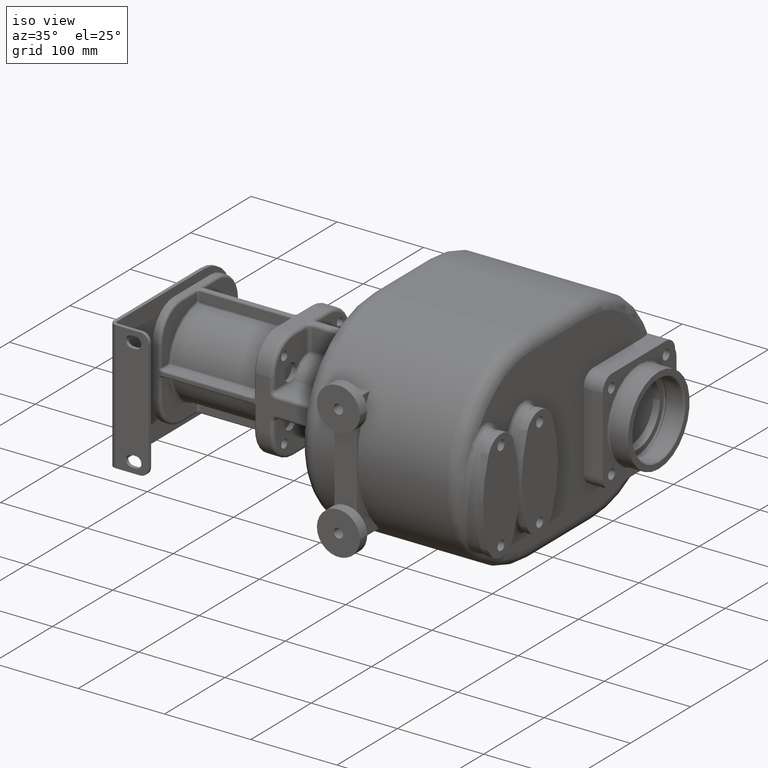
[diagram: clean part render]
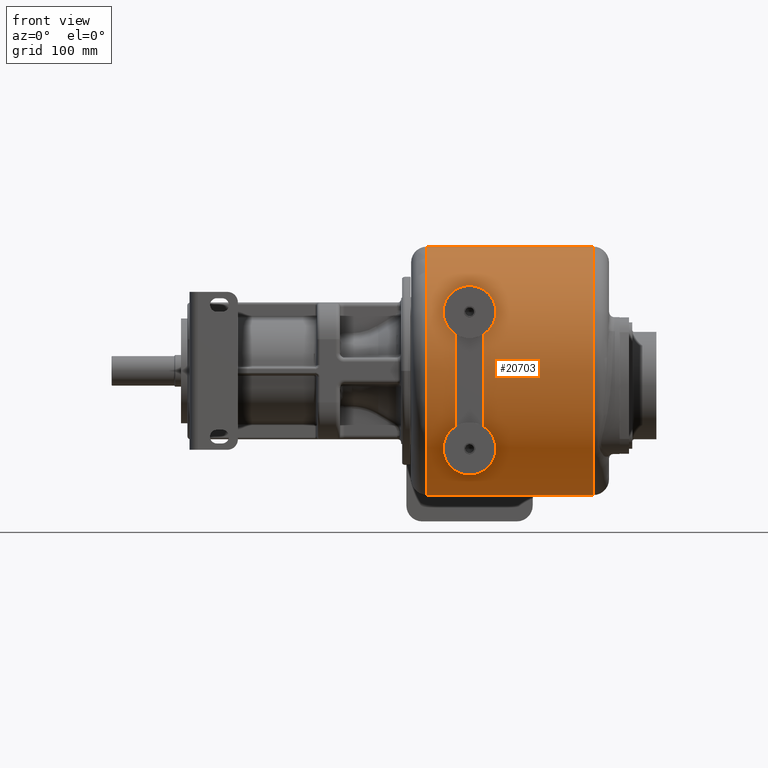
[diagram: tour spotlight — one face highlighted and labeled with its STEP entity id]
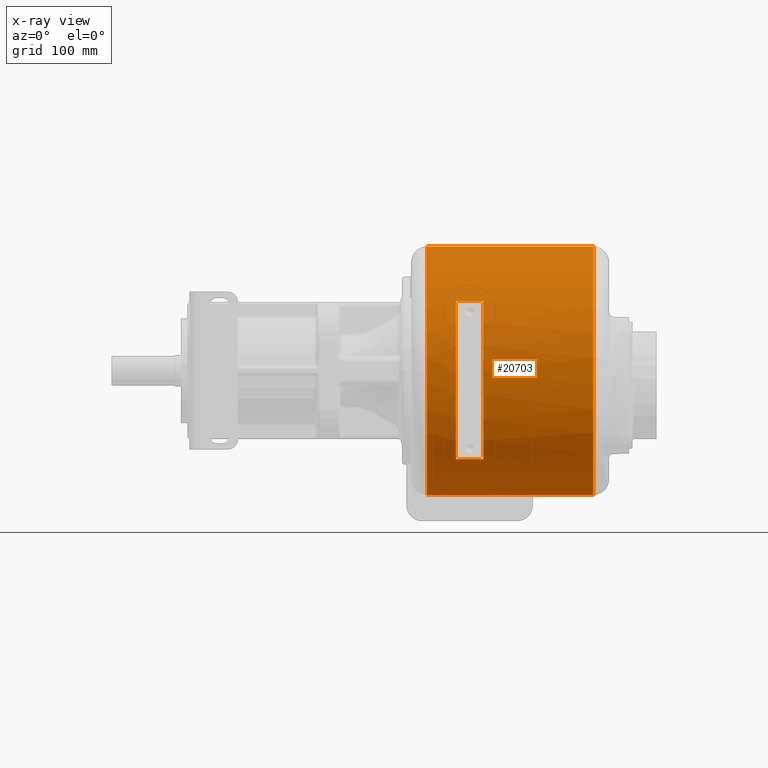
[diagram: x-ray of the same camera — body ghosted, this tour face saturated]
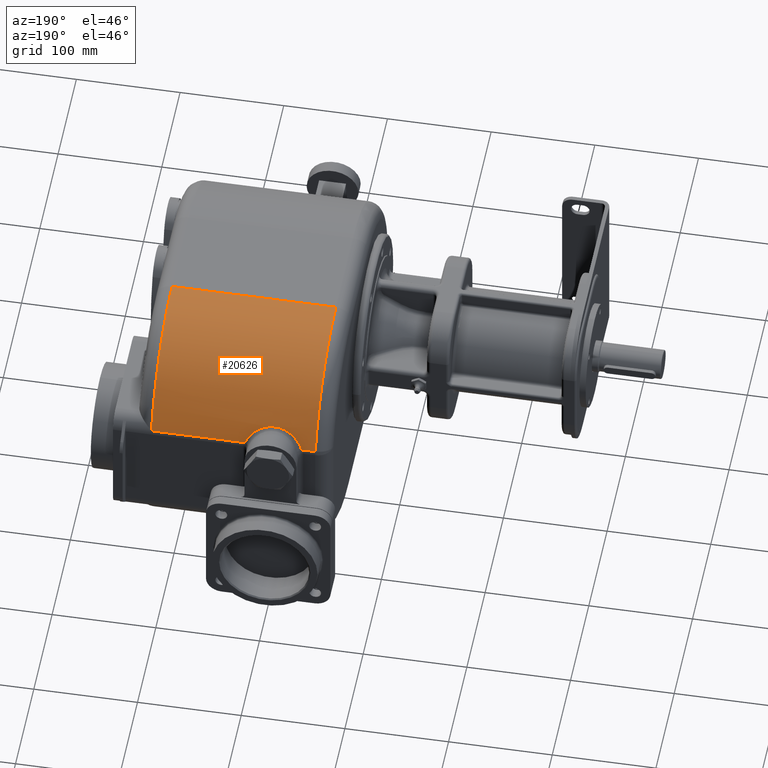
[diagram: tour spotlight — one face highlighted and labeled with its STEP entity id]
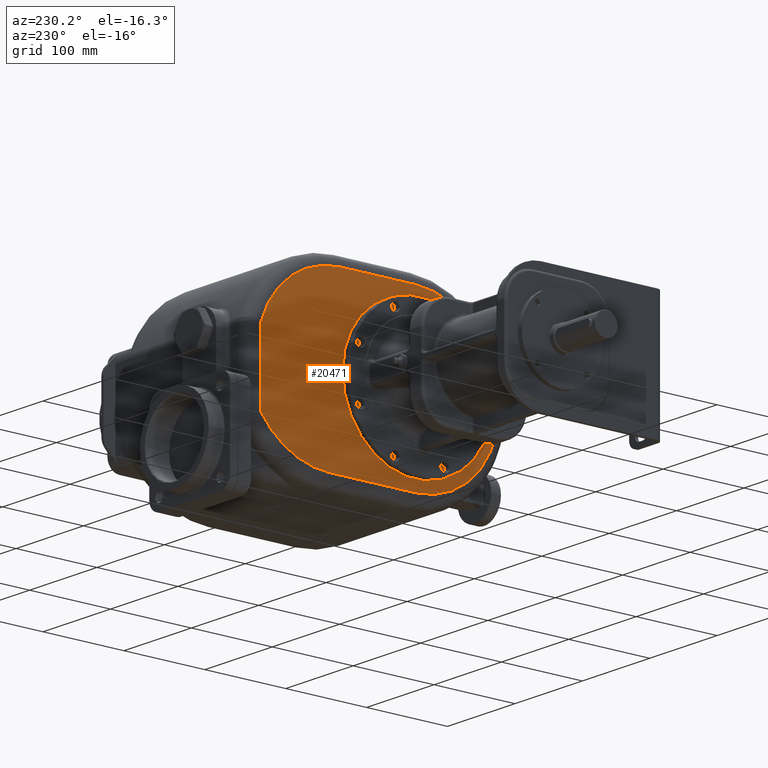
[diagram: tour spotlight — one face highlighted and labeled with its STEP entity id]
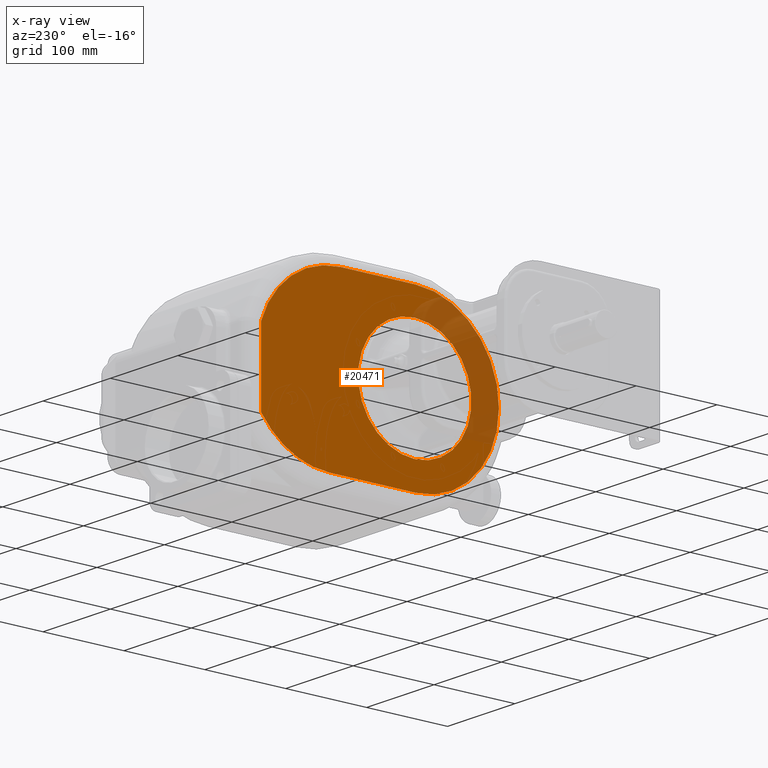
[diagram: x-ray of the same camera — body ghosted, this tour face saturated]
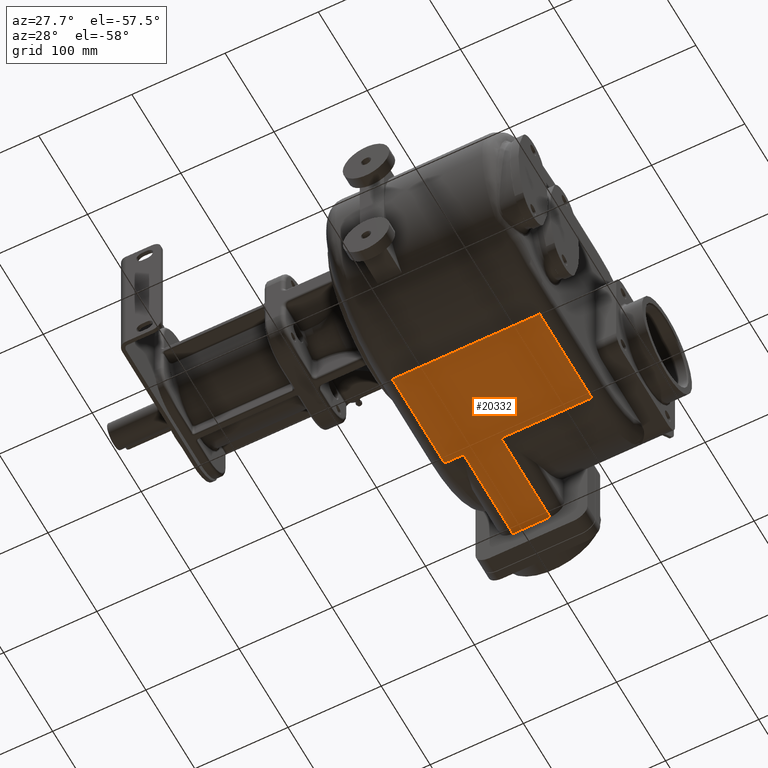
[diagram: tour spotlight — one face highlighted and labeled with its STEP entity id]
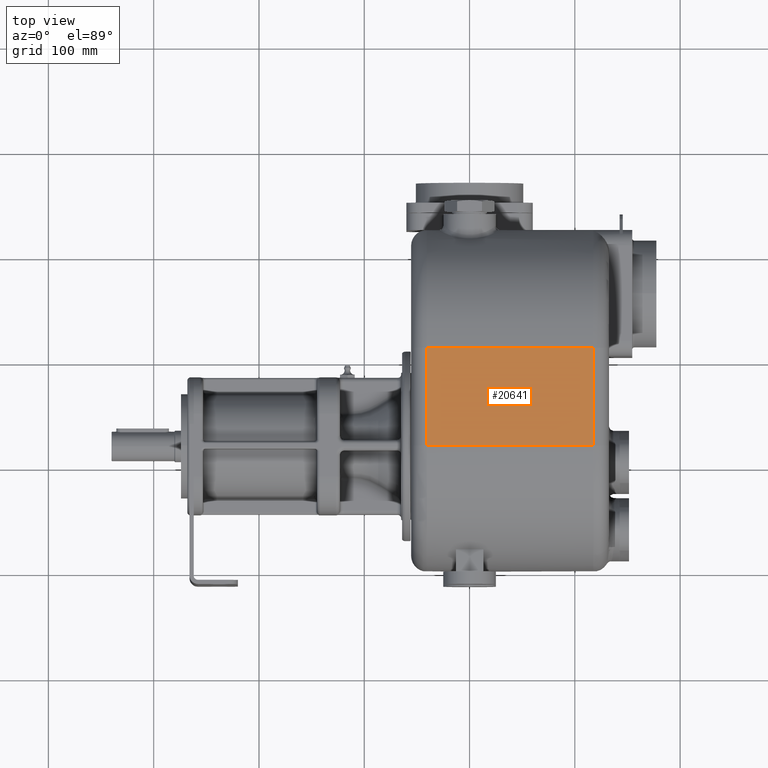
[diagram: tour spotlight — one face highlighted and labeled with its STEP entity id]
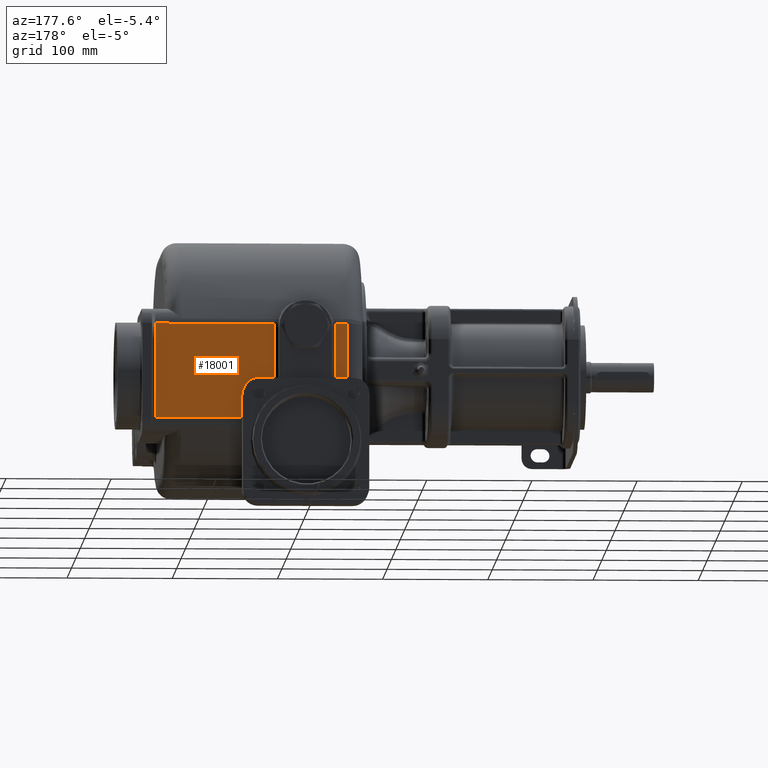
[diagram: tour spotlight — one face highlighted and labeled with its STEP entity id]
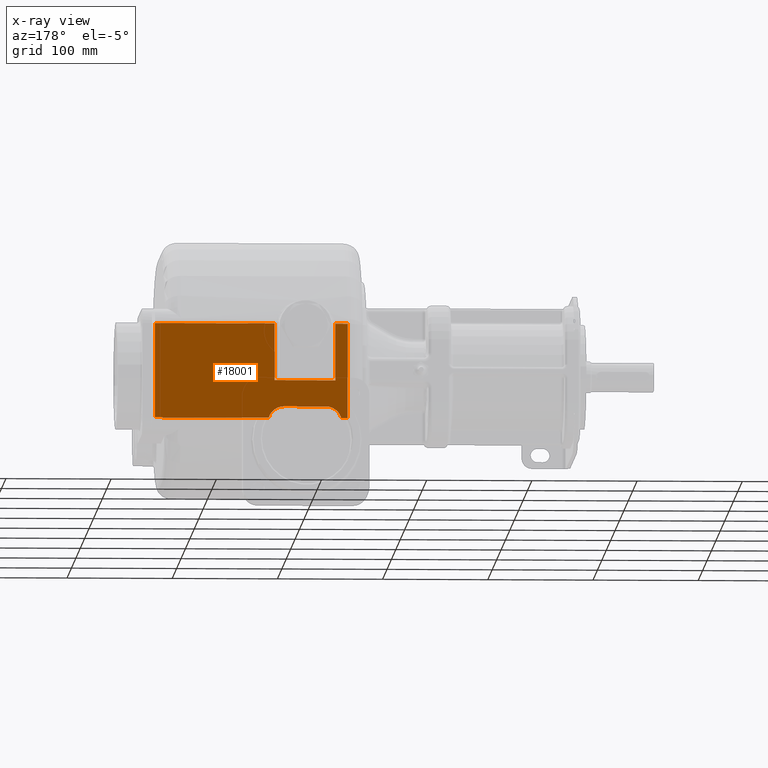
[diagram: x-ray of the same camera — body ghosted, this tour face saturated]
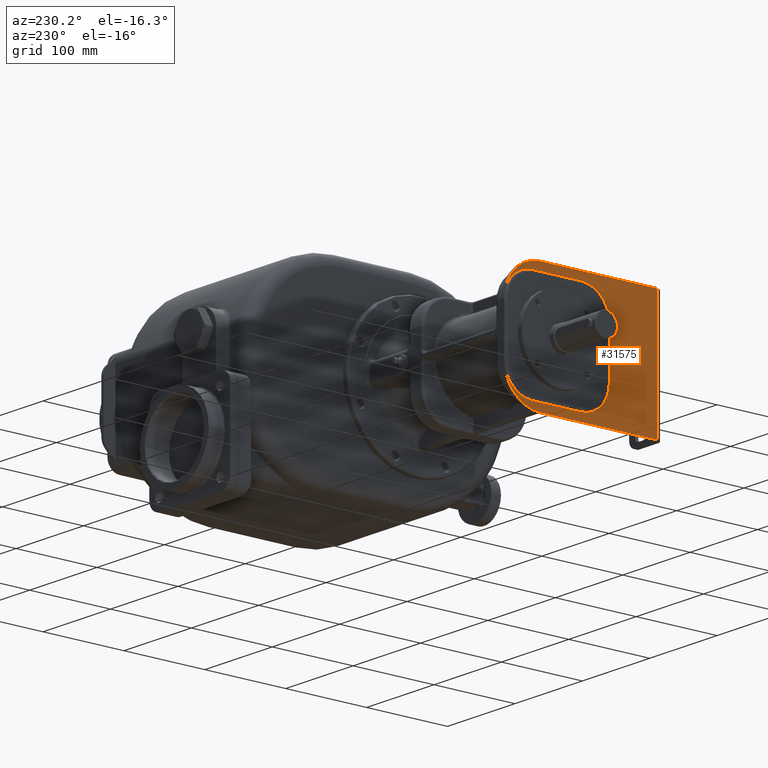
[diagram: tour spotlight — one face highlighted and labeled with its STEP entity id]
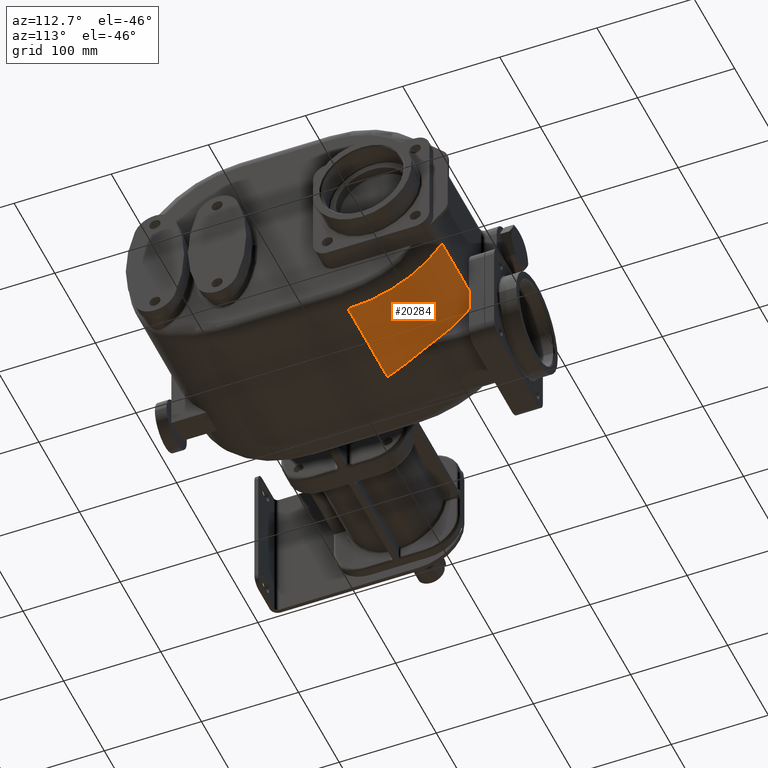
[diagram: tour spotlight — one face highlighted and labeled with its STEP entity id]
A machine part: a face-by-face anatomy tour. The part has 828 B-rep faces; the first image is the clean iso view, then the 8 largest visible faces are spotlighted one at a time (largest first), each with its STEP entity span.

Face 1 — front view, entity #20703. An x-ray twin of the same camera follows (body ghosted, this face saturated) — the face is partly hidden behind the body. In plain terms, the highlighted cylindrical surface (partial cylindrical patch) has radius 118 mm, axis along (-1, 0, 0).
Definition (entity closure, byte-faithful):
#3068=DIRECTION('',(1.E0,1.116181689973E-13,0.E0));
#3069=VECTOR('',#3068,1.58E2);
#3070=CARTESIAN_POINT('',(-4.05E1,1.19E2,1.18E2));
#3071=LINE('',#3070,#3069);
#3087=CARTESIAN_POINT('',(-4.05E1,1.19E2,0.E0));
#3088=DIRECTION('',(-1.E0,0.E0,0.E0));
#3089=DIRECTION('',(0.E0,0.E0,-1.E0));
#3090=AXIS2_PLACEMENT_3D('',#3087,#3088,#3089);
#3092=CARTESIAN_POINT('',(1.175E2,1.19E2,0.E0));
#3093=DIRECTION('',(1.E0,0.E0,0.E0));
#3094=DIRECTION('',(0.E0,0.E0,1.E0));
#3095=AXIS2_PLACEMENT_3D('',#3092,#3093,#3094);
#3097=DIRECTION('',(1.E0,-5.990145088813E-14,0.E0));
#3098=VECTOR('',#3097,1.58E2);
#3099=CARTESIAN_POINT('',(-4.05E1,1.19E2,-1.18E2));
#3100=LINE('',#3099,#3098);
#3101=DIRECTION('',(-1.E0,0.E0,0.E0));
#3102=VECTOR('',#3101,2.6E1);
#3103=CARTESIAN_POINT('',(1.3E1,3.612660257960E1,-8.4E1));
#3104=LINE('',#3103,#3102);
#3105=CARTESIAN_POINT('',(1.3E1,1.19E2,0.E0));
#3106=DIRECTION('',(-1.E0,0.E0,0.E0));
#3107=DIRECTION('',(0.E0,-7.023169272915E-1,-7.118644067797E-1));
#3108=AXIS2_PLACEMENT_3D('',#3105,#3106,#3107);
#3110=DIRECTION('',(-1.E0,0.E0,0.E0));
#3111=VECTOR('',#3110,2.6E1);
#3112=CARTESIAN_POINT('',(1.3E1,2.118384591490E1,6.6E1));
#3113=LINE('',#3112,#3111);
#3114=CARTESIAN_POINT('',(-1.3E1,1.19E2,0.E0));
#3115=DIRECTION('',(-1.E0,0.E0,0.E0));
#3116=DIRECTION('',(0.E0,-7.023169272915E-1,-7.118644067797E-1));
#3117=AXIS2_PLACEMENT_3D('',#3114,#3115,#3116);
#14881=CARTESIAN_POINT('',(1.3E1,3.612660257960E1,-8.4E1));
#14882=CARTESIAN_POINT('',(-1.3E1,3.612660257960E1,-8.4E1));
#14883=VERTEX_POINT('',#14881);
#14884=VERTEX_POINT('',#14882);
#14885=CARTESIAN_POINT('',(1.3E1,2.118384591490E1,6.6E1));
#14886=VERTEX_POINT('',#14885);
#14887=CARTESIAN_POINT('',(-1.3E1,2.118384591490E1,6.6E1));
#14888=VERTEX_POINT('',#14887);
#14899=CARTESIAN_POINT('',(1.175E2,1.19E2,-1.18E2));
#14900=VERTEX_POINT('',#14899);
#14901=CARTESIAN_POINT('',(1.175E2,1.19E2,1.18E2));
#14902=VERTEX_POINT('',#14901);
#14931=CARTESIAN_POINT('',(-4.05E1,1.19E2,-1.18E2));
#14932=VERTEX_POINT('',#14931);
#14935=CARTESIAN_POINT('',(-4.05E1,1.19E2,1.18E2));
#14936=VERTEX_POINT('',#14935);
#20682=CARTESIAN_POINT('',(-5.55E1,1.19E2,0.E0));
#20683=DIRECTION('',(-1.E0,0.E0,0.E0));
#20684=DIRECTION('',(0.E0,0.E0,1.E0));
#20685=AXIS2_PLACEMENT_3D('',#20682,#20683,#20684);
#20686=CYLINDRICAL_SURFACE('',#20685,1.18E2);
#20687=ORIENTED_EDGE('',*,*,#20675,.T.);
#20688=ORIENTED_EDGE('',*,*,#20637,.T.);
#20689=ORIENTED_EDGE('',*,*,#20231,.T.);
#20690=ORIENTED_EDGE('',*,*,#20326,.F.);
#20691=EDGE_LOOP('',(#20687,#20688,#20689,#20690));
#20692=FACE_OUTER_BOUND('',#20691,.F.);
#20694=ORIENTED_EDGE('',*,*,#20693,.F.);
#20696=ORIENTED_EDGE('',*,*,#20695,.T.);
#20698=ORIENTED_EDGE('',*,*,#20697,.T.);
#20700=ORIENTED_EDGE('',*,*,#20699,.F.);
#20701=EDGE_LOOP('',(#20694,#20696,#20698,#20700));
#20702=FACE_BOUND('',#20701,.F.);
#20703=ADVANCED_FACE('',(#20692,#20702),#20686,.T.);
#3091=CIRCLE('',#3090,1.18E2);
#3096=CIRCLE('',#3095,1.18E2);
#3109=CIRCLE('',#3108,1.18E2);
#3118=CIRCLE('',#3117,1.18E2);
#20231=EDGE_CURVE('',#14902,#14900,#3096,.T.);
#20326=EDGE_CURVE('',#14932,#14900,#3100,.T.);
#20637=EDGE_CURVE('',#14936,#14902,#3071,.T.);
#20675=EDGE_CURVE('',#14932,#14936,#3091,.T.);
#20693=EDGE_CURVE('',#14883,#14884,#3104,.T.);
#20695=EDGE_CURVE('',#14883,#14886,#3109,.T.);
#20697=EDGE_CURVE('',#14886,#14888,#3113,.T.);
#20699=EDGE_CURVE('',#14884,#14888,#3118,.T.);

Face 2 — auxiliary view, entity #20626. In plain terms, the highlighted cylindrical surface (partial cylindrical patch) has radius 118 mm, axis along (-1, 0, 0).
Definition (entity closure, byte-faithful):
#972=DIRECTION('',(-1.E0,-1.152059310806E-7,-3.635169822660E-8));
#973=VECTOR('',#972,9.017689996287E1);
#974=CARTESIAN_POINT('',(1.175E2,3.243044999897E2,3.551456310680E1));
#975=LINE('',#974,#973);
#2942=DIRECTION('',(-9.999999999996E-1,8.038725234325E-7,2.537662743282E-7));
#2943=VECTOR('',#2942,1.317689996236E1);
#2944=CARTESIAN_POINT('',(-2.732310003764E1,3.243044893971E2,3.551455976308E1));
#2945=LINE('',#2944,#2943);
#2961=CARTESIAN_POINT('',(1.175E2,2.117757667375E2,0.E0));
#2962=DIRECTION('',(1.E0,0.E0,0.E0));
#2963=DIRECTION('',(0.E0,9.536333326453E-1,3.009708737864E-1));
#2964=AXIS2_PLACEMENT_3D('',#2961,#2962,#2963);
#2966=DIRECTION('',(1.E0,3.111997298392E-14,0.E0));
#2967=VECTOR('',#2966,1.58E2);
#2968=CARTESIAN_POINT('',(-4.05E1,2.117757667375E2,1.18E2));
#2969=LINE('',#2968,#2967);
#2970=CARTESIAN_POINT('',(-4.05E1,2.117757667375E2,0.E0));
#2971=DIRECTION('',(-1.E0,0.E0,0.E0));
#2972=DIRECTION('',(0.E0,0.E0,1.E0));
#2973=AXIS2_PLACEMENT_3D('',#2970,#2971,#2972);
#2975=CARTESIAN_POINT('',(-2.732310003764E1,3.243044893971E2,3.551455976308E1));
#2976=CARTESIAN_POINT('',(-2.722320306664E1,3.242187756604E2,3.578612023290E1));
#2977=CARTESIAN_POINT('',(-2.701447067224E1,3.240459974894E2,3.632681696883E1));
#2978=CARTESIAN_POINT('',(-2.667450536775E1,3.237825335459E2,3.713112744001E1));
#2979=CARTESIAN_POINT('',(-2.630794958831E1,3.235155459129E2,3.792696422673E1));
#2980=CARTESIAN_POINT('',(-2.591514676035E1,3.232455503376E2,3.871324321129E1));
#2981=CARTESIAN_POINT('',(-2.549649261944E1,3.229731707289E2,3.948872925290E1));
#2982=CARTESIAN_POINT('',(-2.505243538481E1,3.226990354349E2,4.025226348443E1));
#2983=CARTESIAN_POINT('',(-2.458348031825E1,3.224238119293E2,4.100267873090E1));
#2984=CARTESIAN_POINT('',(-2.409014730299E1,3.221481272941E2,4.173900472527E1));
#2985=CARTESIAN_POINT('',(-2.357288138626E1,3.218725538186E2,4.246048230127E1));
#2986=CARTESIAN_POINT('',(-2.303217671899E1,3.215976895463E2,4.316633711833E1));
#2987=CARTESIAN_POINT('',(-2.246853476332E1,3.213241328501E2,4.385584142053E1));
#2988=CARTESIAN_POINT('',(-2.188278562788E1,3.210526279115E2,4.452795177626E1));
#2989=CARTESIAN_POINT('',(-2.127585033461E1,3.207839245902E2,4.518167338945E1));
#2990=CARTESIAN_POINT('',(-2.064871174600E1,3.205187696351E2,4.581607081470E1));
#2991=CARTESIAN_POINT('',(-2.000241500357E1,3.202579166617E2,4.643023694796E1));
#2992=CARTESIAN_POINT('',(-1.933803334435E1,3.200020952308E2,4.702335780393E1));
#2993=CARTESIAN_POINT('',(-1.865670440777E1,3.197520252656E2,4.759466870591E1));
#2994=CARTESIAN_POINT('',(-1.795954185661E1,3.195083781634E2,4.814353493059E1));
#2995=CARTESIAN_POINT('',(-1.724737772713E1,3.192716967277E2,4.866961434667E1));
#2996=CARTESIAN_POINT('',(-1.652108381939E1,3.190425182210E2,4.917256724090E1));
#2997=CARTESIAN_POINT('',(-1.578150877047E1,3.188213435110E2,4.965212048524E1));
#2998=CARTESIAN_POINT('',(-1.502991408951E1,3.186087418767E2,5.010783809838E1));
#2999=CARTESIAN_POINT('',(-1.426760145693E1,3.184052590715E2,5.053932206906E1));
#3000=CARTESIAN_POINT('',(-1.349596758082E1,3.182114203278E2,5.094620081477E1));
#3001=CARTESIAN_POINT('',(-1.271597477395E1,3.180275998359E2,5.132839555578E1));
#3002=CARTESIAN_POINT('',(-1.192793166788E1,3.178540077158E2,5.168612970144E1));
#3003=CARTESIAN_POINT('',(-1.113219514106E1,3.176908851203E2,5.201951911576E1));
#3004=CARTESIAN_POINT('',(-1.032909371995E1,3.175384420339E2,5.232870236638E1));
#3005=CARTESIAN_POINT('',(-9.519927071384E0,3.173969816011E2,5.261359023835E1));
#3006=CARTESIAN_POINT('',(-8.705910883724E0,3.172667739466E2,5.287412483647E1));
#3007=CARTESIAN_POINT('',(-7.888404588979E0,3.171480727777E2,5.311024429640E1));
#3008=CARTESIAN_POINT('',(-7.067855789562E0,3.170409780545E2,5.332215286505E1));
#3009=CARTESIAN_POINT('',(-6.244199235587E0,3.169455423170E2,5.351010433530E1));
#3010=CARTESIAN_POINT('',(-5.417360513739E0,3.168618751239E2,5.367419791177E1));
#3011=CARTESIAN_POINT('',(-4.587442301285E0,3.167900553702E2,5.381455286153E1));
#3012=CARTESIAN_POINT('',(-3.755317262186E0,3.167301088099E2,5.393135167263E1));
#3013=CARTESIAN_POINT('',(-2.921709405275E0,3.166820730575E2,5.402471350709E1));
#3014=CARTESIAN_POINT('',(-2.087392846077E0,3.166459815619E2,5.409472656742E1));
#3015=CARTESIAN_POINT('',(-1.252624348277E0,3.166218575462E2,5.414146030822E1));
#3016=CARTESIAN_POINT('',(-4.175826712692E-1,3.166097444735E2,
5.416490682821E1));
#3017=CARTESIAN_POINT('',(4.175485357012E-1,3.166097443503E2,5.416490706651E1));
#3018=CARTESIAN_POINT('',(1.252592002560E0,3.166218571264E2,5.414146112114E1));
#3019=CARTESIAN_POINT('',(2.087363229494E0,3.166459808581E2,5.409472793161E1));
#3020=CARTESIAN_POINT('',(2.921682819615E0,3.166820720892E2,5.402471538702E1));
#3021=CARTESIAN_POINT('',(3.755293179873E0,3.167301075649E2,5.393135409506E1));
#3022=CARTESIAN_POINT('',(4.587419897995E0,3.167900538014E2,5.381455592214E1));
#3023=CARTESIAN_POINT('',(5.417338765298E0,3.168618731496E2,5.367420177601E1));
#3024=CARTESIAN_POINT('',(6.244176776022E0,3.169455397998E2,5.351010928102E1));
#3025=CARTESIAN_POINT('',(7.067831634774E0,3.170409749158E2,5.332215905918E1));
#3026=CARTESIAN_POINT('',(7.888378517497E0,3.171480689823E2,5.311025182421E1));
#3027=CARTESIAN_POINT('',(8.705883420758E0,3.172667695602E2,5.287413358566E1));
#3028=CARTESIAN_POINT('',(9.519899044340E0,3.173969767541E2,5.261359996677E1));
#3029=CARTESIAN_POINT('',(1.032906572935E1,3.175384368388E2,5.232871286466E1));
#3030=CARTESIAN_POINT('',(1.113216763243E1,3.176908796681E2,5.201953021550E1));
#3031=CARTESIAN_POINT('',(1.192790509154E1,3.178540020922E2,5.168614124206E1));
#3032=CARTESIAN_POINT('',(1.271594943735E1,3.180275941053E2,5.132840741744E1));
#3033=CARTESIAN_POINT('',(1.349594347115E1,3.182114145042E2,5.094621298033E1));
#3034=CARTESIAN_POINT('',(1.426757826234E1,3.184052530980E2,5.053933467026E1));
#3035=CARTESIAN_POINT('',(1.502989121059E1,3.186087356081E2,5.010785146025E1));
#3036=CARTESIAN_POINT('',(1.578148596659E1,3.188213368828E2,4.965213477149E1));
#3037=CARTESIAN_POINT('',(1.652106106030E1,3.190425112265E2,4.917258249536E1));
#3038=CARTESIAN_POINT('',(1.724735526640E1,3.192716894539E2,4.866963040892E1));
#3039=CARTESIAN_POINT('',(1.795951970387E1,3.195083706179E2,4.814355181172E1));
#3040=CARTESIAN_POINT('',(1.865668233065E1,3.197520173666E2,4.759468662045E1));
#3041=CARTESIAN_POINT('',(1.933801092612E1,3.200020868112E2,4.702337717451E1));
#3042=CARTESIAN_POINT('',(2.000239228001E1,3.202579077113E2,4.643025785269E1));
#3043=CARTESIAN_POINT('',(2.064868893521E1,3.205187602281E2,4.581609313551E1));
#3044=CARTESIAN_POINT('',(2.127582788877E1,3.207839149218E2,4.518169671263E1));
#3045=CARTESIAN_POINT('',(2.188276407408E1,3.210526182607E2,4.452797545986E1));
#3046=CARTESIAN_POINT('',(2.246851447981E1,3.213241233898E2,4.385586505393E1));
#3047=CARTESIAN_POINT('',(2.303215812189E1,3.215976804903E2,4.316636016304E1));
#3048=CARTESIAN_POINT('',(2.357286444209E1,3.218725451685E2,4.246050473330E1));
#3049=CARTESIAN_POINT('',(2.409013161768E1,3.221481188491E2,4.173902705603E1));
#3050=CARTESIAN_POINT('',(2.458346545904E1,3.224238034461E2,4.100270161613E1));
#3051=CARTESIAN_POINT('',(2.505242078762E1,3.226990265505E2,4.025228795460E1));
#3052=CARTESIAN_POINT('',(2.549647817838E1,3.229731613891E2,3.948875554062E1));
#3053=CARTESIAN_POINT('',(2.591513284646E1,3.232455408773E2,3.871327045571E1));
#3054=CARTESIAN_POINT('',(2.630793694499E1,3.235155369901E2,3.792699051200E1));
#3055=CARTESIAN_POINT('',(2.667449523419E1,3.237825261811E2,3.713114978394E1));
#3056=CARTESIAN_POINT('',(2.701446407989E1,3.240459928230E2,3.632683116926E1));
#3057=CARTESIAN_POINT('',(2.722320095430E1,3.242187741495E2,3.578612569820E1));
#3058=CARTESIAN_POINT('',(2.732310003713E1,3.243044896008E2,3.551455982871E1));
#14907=CARTESIAN_POINT('',(1.175E2,2.117757667375E2,1.18E2));
#14908=VERTEX_POINT('',#14907);
#14911=CARTESIAN_POINT('',(1.175E2,3.243044999897E2,3.551456310680E1));
#14912=VERTEX_POINT('',#14911);
#14939=CARTESIAN_POINT('',(-4.05E1,2.117757667375E2,1.18E2));
#14940=VERTEX_POINT('',#14939);
#14941=CARTESIAN_POINT('',(-4.05E1,3.243044999897E2,3.551456310680E1));
#14942=VERTEX_POINT('',#14941);
#14951=CARTESIAN_POINT('',(2.732310003713E1,3.243044896008E2,3.551455982871E1));
#14952=VERTEX_POINT('',#14951);
#14953=CARTESIAN_POINT('',(-2.732310003764E1,3.243044893971E2,
3.551455976308E1));
#14954=VERTEX_POINT('',#14953);
#20611=CARTESIAN_POINT('',(-5.55E1,2.117757667375E2,0.E0));
#20612=DIRECTION('',(-1.E0,0.E0,0.E0));
#20613=DIRECTION('',(0.E0,0.E0,1.E0));
#20614=AXIS2_PLACEMENT_3D('',#20611,#20612,#20613);
#20615=CYLINDRICAL_SURFACE('',#20614,1.18E2);
#20616=ORIENTED_EDGE('',*,*,#18148,.F.);
#20617=ORIENTED_EDGE('',*,*,#18900,.T.);
#20619=ORIENTED_EDGE('',*,*,#20618,.F.);
#20621=ORIENTED_EDGE('',*,*,#20620,.T.);
#20622=ORIENTED_EDGE('',*,*,#20506,.F.);
#20623=ORIENTED_EDGE('',*,*,#20602,.T.);
#20624=EDGE_LOOP('',(#20616,#20617,#20619,#20621,#20622,#20623));
#20625=FACE_OUTER_BOUND('',#20624,.F.);
#20626=ADVANCED_FACE('',(#20625),#20615,.T.);
#2965=CIRCLE('',#2964,1.18E2);
#2974=CIRCLE('',#2973,1.18E2);
#3059=B_SPLINE_CURVE_WITH_KNOTS('',3,(#2975,#2976,#2977,#2978,#2979,#2980,#2981,
#2982,#2983,#2984,#2985,#2986,#2987,#2988,#2989,#2990,#2991,#2992,#2993,#2994,
#2995,#2996,#2997,#2998,#2999,#3000,#3001,#3002,#3003,#3004,#3005,#3006,#3007,
#3008,#3009,#3010,#3011,#3012,#3013,#3014,#3015,#3016,#3017,#3018,#3019,#3020,
#3021,#3022,#3023,#3024,#3025,#3026,#3027,#3028,#3029,#3030,#3031,#3032,#3033,
#3034,#3035,#3036,#3037,#3038,#3039,#3040,#3041,#3042,#3043,#3044,#3045,#3046,
#3047,#3048,#3049,#3050,#3051,#3052,#3053,#3054,#3055,#3056,#3057,#3058),
.UNSPECIFIED.,.F.,.F.,(4,1,1,1,1,1,1,1,1,1,1,1,1,1,1,1,1,1,1,1,1,1,1,1,1,1,1,1,
1,1,1,1,1,1,1,1,1,1,1,1,1,1,1,1,1,1,1,1,1,1,1,1,1,1,1,1,1,1,1,1,1,1,1,1,1,1,1,1,
1,1,1,1,1,1,1,1,1,1,1,1,1,4),(0.E0,1.234567901235E-2,2.469135802469E-2,
3.703703703704E-2,4.938271604938E-2,6.172839506173E-2,7.407407407407E-2,
8.641975308642E-2,9.876543209877E-2,1.111111111111E-1,1.234567901235E-1,
1.358024691358E-1,1.481481481481E-1,1.604938271605E-1,1.728395061728E-1,
1.851851851852E-1,1.975308641975E-1,2.098765432099E-1,2.222222222222E-1,
2.345679012346E-1,2.469135802469E-1,2.592592592593E-1,2.716049382716E-1,
2.839506172840E-1,2.962962962963E-1,3.086419753086E-1,3.209876543210E-1,
3.333333333333E-1,3.456790123457E-1,3.580246913580E-1,3.703703703704E-1,
3.827160493827E-1,3.950617283951E-1,4.074074074074E-1,4.197530864198E-1,
4.320987654321E-1,4.444444444444E-1,4.567901234568E-1,4.691358024691E-1,
4.814814814815E-1,4.938271604938E-1,5.061728395062E-1,5.185185185185E-1,
5.308641975309E-1,5.432098765432E-1,5.555555555556E-1,5.679012345679E-1,
5.802469135802E-1,5.925925925926E-1,6.049382716049E-1,6.172839506173E-1,
6.296296296296E-1,6.419753086420E-1,6.543209876543E-1,6.666666666667E-1,
6.790123456790E-1,6.913580246914E-1,7.037037037037E-1,7.160493827160E-1,
7.283950617284E-1,7.407407407407E-1,7.530864197531E-1,7.654320987654E-1,
7.777777777778E-1,7.901234567901E-1,8.024691358025E-1,8.148148148148E-1,
8.271604938272E-1,8.395061728395E-1,8.518518518519E-1,8.641975308642E-1,
8.765432098765E-1,8.888888888889E-1,9.012345679012E-1,9.135802469136E-1,
9.259259259259E-1,9.382716049383E-1,9.506172839506E-1,9.629629629630E-1,
9.753086419753E-1,9.876543209877E-1,1.E0),.UNSPECIFIED.);
#18148=EDGE_CURVE('',#14912,#14952,#975,.T.);
#18900=EDGE_CURVE('',#14912,#14908,#2965,.T.);
#20506=EDGE_CURVE('',#14954,#14942,#2945,.T.);
#20602=EDGE_CURVE('',#14954,#14952,#3059,.T.);
#20618=EDGE_CURVE('',#14940,#14908,#2969,.T.);
#20620=EDGE_CURVE('',#14940,#14942,#2974,.T.);

Face 3 — auxiliary view, entity #20471. An x-ray twin of the same camera follows (body ghosted, this face saturated) — the face is partly hidden behind the body. In plain terms, the highlighted planar face has unit normal (1, 0, 0).
Definition (entity closure, byte-faithful):
#2881=DIRECTION('',(0.E0,0.E0,-1.E0));
#2882=VECTOR('',#2881,9.E1);
#2883=CARTESIAN_POINT('',(-5.55E1,3.1E2,3.1E1));
#2884=LINE('',#2883,#2882);
#2885=CARTESIAN_POINT('',(-5.55E1,2.117757667375E2,0.E0));
#2886=DIRECTION('',(-1.E0,0.E0,0.E0));
#2887=DIRECTION('',(0.E0,0.E0,1.E0));
#2888=AXIS2_PLACEMENT_3D('',#2885,#2886,#2887);
#2890=DIRECTION('',(0.E0,1.E0,0.E0));
#2891=VECTOR('',#2890,9.277576673753E1);
#2892=CARTESIAN_POINT('',(-5.55E1,1.19E2,1.03E2));
#2893=LINE('',#2892,#2891);
#2894=CARTESIAN_POINT('',(-5.55E1,1.19E2,0.E0));
#2895=DIRECTION('',(-1.E0,0.E0,0.E0));
#2896=DIRECTION('',(0.E0,0.E0,-1.E0));
#2897=AXIS2_PLACEMENT_3D('',#2894,#2895,#2896);
#2899=DIRECTION('',(0.E0,-1.E0,0.E0));
#2900=VECTOR('',#2899,1.065725163232E2);
#2901=CARTESIAN_POINT('',(-5.55E1,2.255725163232E2,-1.03E2));
#2902=LINE('',#2901,#2900);
#2903=CARTESIAN_POINT('',(-5.55E1,2.255725163232E2,0.E0));
#2904=DIRECTION('',(-1.E0,0.E0,0.E0));
#2905=DIRECTION('',(0.E0,8.196843075420E-1,-5.728155339806E-1));
#2906=AXIS2_PLACEMENT_3D('',#2903,#2904,#2905);
#2908=CARTESIAN_POINT('',(-5.55E1,1.2E2,0.E0));
#2909=DIRECTION('',(1.E0,0.E0,0.E0));
#2910=DIRECTION('',(0.E0,0.E0,1.E0));
#2911=AXIS2_PLACEMENT_3D('',#2908,#2909,#2910);
#2913=CARTESIAN_POINT('',(-5.55E1,1.2E2,0.E0));
#2914=DIRECTION('',(1.E0,0.E0,0.E0));
#2915=DIRECTION('',(0.E0,0.E0,-1.E0));
#2916=AXIS2_PLACEMENT_3D('',#2913,#2914,#2915);
#14919=CARTESIAN_POINT('',(-5.55E1,3.1E2,3.1E1));
#14920=CARTESIAN_POINT('',(-5.55E1,3.1E2,-5.9E1));
#14921=VERTEX_POINT('',#14919);
#14922=VERTEX_POINT('',#14920);
#14923=CARTESIAN_POINT('',(-5.55E1,2.255725163232E2,-1.03E2));
#14924=VERTEX_POINT('',#14923);
#14929=CARTESIAN_POINT('',(-5.55E1,1.19E2,-1.03E2));
#14930=VERTEX_POINT('',#14929);
#14933=CARTESIAN_POINT('',(-5.55E1,1.19E2,1.03E2));
#14934=VERTEX_POINT('',#14933);
#14937=CARTESIAN_POINT('',(-5.55E1,2.117757667375E2,1.03E2));
#14938=VERTEX_POINT('',#14937);
#16034=CARTESIAN_POINT('',(-5.55E1,1.2E2,7.E1));
#16035=CARTESIAN_POINT('',(-5.55E1,1.2E2,-7.E1));
#16036=VERTEX_POINT('',#16034);
#16037=VERTEX_POINT('',#16035);
#20447=CARTESIAN_POINT('',(-5.55E1,1.2E2,0.E0));
#20448=DIRECTION('',(1.E0,0.E0,0.E0));
#20449=DIRECTION('',(0.E0,0.E0,1.E0));
#20450=AXIS2_PLACEMENT_3D('',#20447,#20448,#20449);
#20451=PLANE('',#20450);
#20453=ORIENTED_EDGE('',*,*,#20452,.F.);
#20455=ORIENTED_EDGE('',*,*,#20454,.F.);
#20457=ORIENTED_EDGE('',*,*,#20456,.F.);
#20459=ORIENTED_EDGE('',*,*,#20458,.F.);
#20461=ORIENTED_EDGE('',*,*,#20460,.F.);
#20462=ORIENTED_EDGE('',*,*,#20437,.F.);
#20463=EDGE_LOOP('',(#20453,#20455,#20457,#20459,#20461,#20462));
#20464=FACE_OUTER_BOUND('',#20463,.F.);
#20466=ORIENTED_EDGE('',*,*,#20465,.F.);
#20468=ORIENTED_EDGE('',*,*,#20467,.F.);
#20469=EDGE_LOOP('',(#20466,#20468));
#20470=FACE_BOUND('',#20469,.F.);
#20471=ADVANCED_FACE('',(#20464,#20470),#20451,.F.);
#2889=CIRCLE('',#2888,1.03E2);
#2898=CIRCLE('',#2897,1.03E2);
#2907=CIRCLE('',#2906,1.03E2);
#2912=CIRCLE('',#2911,7.E1);
#2917=CIRCLE('',#2916,7.E1);
#20437=EDGE_CURVE('',#14922,#14924,#2907,.T.);
#20452=EDGE_CURVE('',#14921,#14922,#2884,.T.);
#20454=EDGE_CURVE('',#14938,#14921,#2889,.T.);
#20456=EDGE_CURVE('',#14934,#14938,#2893,.T.);
#20458=EDGE_CURVE('',#14930,#14934,#2898,.T.);
#20460=EDGE_CURVE('',#14924,#14930,#2902,.T.);
#20465=EDGE_CURVE('',#16036,#16037,#2912,.T.);
#20467=EDGE_CURVE('',#16037,#16036,#2917,.T.);

Face 4 — auxiliary view, entity #20332. In plain terms, the highlighted planar face has unit normal (0, 0, -1).
Definition (entity closure, byte-faithful):
#634=DIRECTION('',(1.E0,0.E0,0.E0));
#635=VECTOR('',#634,4.E1);
#636=CARTESIAN_POINT('',(-2.E1,3.26E2,-1.18E2));
#637=LINE('',#636,#635);
#2682=DIRECTION('',(1.E0,-3.550527393460E-12,0.E0));
#2683=VECTOR('',#2682,9.75E1);
#2684=CARTESIAN_POINT('',(2.E1,2.255725163232E2,-1.18E2));
#2685=LINE('',#2684,#2683);
#2736=DIRECTION('',(0.E0,1.E0,0.E0));
#2737=VECTOR('',#2736,1.004274836768E2);
#2738=CARTESIAN_POINT('',(2.E1,2.255725163232E2,-1.18E2));
#2739=LINE('',#2738,#2737);
#2740=DIRECTION('',(0.E0,1.E0,0.E0));
#2741=VECTOR('',#2740,1.004274836768E2);
#2742=CARTESIAN_POINT('',(-2.E1,2.255725163232E2,-1.18E2));
#2743=LINE('',#2742,#2741);
#2744=DIRECTION('',(0.E0,-1.E0,0.E0));
#2745=VECTOR('',#2744,1.065725163230E2);
#2746=CARTESIAN_POINT('',(-4.05E1,2.255725163230E2,-1.18E2));
#2747=LINE('',#2746,#2745);
#2748=DIRECTION('',(0.E0,1.E0,0.E0));
#2749=VECTOR('',#2748,1.065725163228E2);
#2750=CARTESIAN_POINT('',(1.175E2,1.19E2,-1.18E2));
#2751=LINE('',#2750,#2749);
#3097=DIRECTION('',(1.E0,-5.990145088813E-14,0.E0));
#3098=VECTOR('',#3097,1.58E2);
#3099=CARTESIAN_POINT('',(-4.05E1,1.19E2,-1.18E2));
#3100=LINE('',#3099,#3098);
#13471=DIRECTION('',(1.E0,8.440554488405E-12,0.E0));
#13472=VECTOR('',#13471,2.05E1);
#13473=CARTESIAN_POINT('',(-4.05E1,2.255725163230E2,-1.18E2));
#13474=LINE('',#13473,#13472);
#14825=CARTESIAN_POINT('',(2.E1,2.255725163232E2,-1.18E2));
#14826=CARTESIAN_POINT('',(2.E1,3.26E2,-1.18E2));
#14827=VERTEX_POINT('',#14825);
#14828=VERTEX_POINT('',#14826);
#14853=CARTESIAN_POINT('',(-2.E1,2.255725163232E2,-1.18E2));
#14854=CARTESIAN_POINT('',(-2.E1,3.26E2,-1.18E2));
#14855=VERTEX_POINT('',#14853);
#14856=VERTEX_POINT('',#14854);
#14889=CARTESIAN_POINT('',(1.175E2,2.255725163232E2,-1.18E2));
#14891=VERTEX_POINT('',#14889);
#14899=CARTESIAN_POINT('',(1.175E2,1.19E2,-1.18E2));
#14900=VERTEX_POINT('',#14899);
#14926=CARTESIAN_POINT('',(-4.05E1,2.255725163232E2,-1.18E2));
#14928=VERTEX_POINT('',#14926);
#14931=CARTESIAN_POINT('',(-4.05E1,1.19E2,-1.18E2));
#14932=VERTEX_POINT('',#14931);
#20313=CARTESIAN_POINT('',(-3.5E1,1.2E2,-1.18E2));
#20314=DIRECTION('',(0.E0,0.E0,-1.E0));
#20315=DIRECTION('',(1.E0,0.E0,0.E0));
#20316=AXIS2_PLACEMENT_3D('',#20313,#20314,#20315);
#20317=PLANE('',#20316);
#20318=ORIENTED_EDGE('',*,*,#20305,.T.);
#20319=ORIENTED_EDGE('',*,*,#17890,.F.);
#20321=ORIENTED_EDGE('',*,*,#20320,.F.);
#20323=ORIENTED_EDGE('',*,*,#20322,.F.);
#20325=ORIENTED_EDGE('',*,*,#20324,.T.);
#20327=ORIENTED_EDGE('',*,*,#20326,.T.);
#20328=ORIENTED_EDGE('',*,*,#20249,.T.);
#20329=ORIENTED_EDGE('',*,*,#20278,.F.);
#20330=EDGE_LOOP('',(#20318,#20319,#20321,#20323,#20325,#20327,#20328,#20329));
#20331=FACE_OUTER_BOUND('',#20330,.F.);
#20332=ADVANCED_FACE('',(#20331),#20317,.T.);
#17890=EDGE_CURVE('',#14856,#14828,#637,.T.);
#20249=EDGE_CURVE('',#14900,#14891,#2751,.T.);
#20278=EDGE_CURVE('',#14827,#14891,#2685,.T.);
#20305=EDGE_CURVE('',#14827,#14828,#2739,.T.);
#20320=EDGE_CURVE('',#14855,#14856,#2743,.T.);
#20322=EDGE_CURVE('',#14928,#14855,#13474,.T.);
#20324=EDGE_CURVE('',#14928,#14932,#2747,.T.);
#20326=EDGE_CURVE('',#14932,#14900,#3100,.T.);

Face 5 — top view, entity #20641. In plain terms, the highlighted planar face has unit normal (0, 0, 1).
Definition (entity closure, byte-faithful):
#2966=DIRECTION('',(1.E0,3.111997298392E-14,0.E0));
#2967=VECTOR('',#2966,1.58E2);
#2968=CARTESIAN_POINT('',(-4.05E1,2.117757667375E2,1.18E2));
#2969=LINE('',#2968,#2967);
#3060=DIRECTION('',(0.E0,1.E0,0.E0));
#3061=VECTOR('',#3060,9.277576673750E1);
#3062=CARTESIAN_POINT('',(-4.05E1,1.19E2,1.18E2));
#3063=LINE('',#3062,#3061);
#3064=DIRECTION('',(0.E0,-1.E0,0.E0));
#3065=VECTOR('',#3064,9.277576673749E1);
#3066=CARTESIAN_POINT('',(1.175E2,2.117757667375E2,1.18E2));
#3067=LINE('',#3066,#3065);
#3068=DIRECTION('',(1.E0,1.116181689973E-13,0.E0));
#3069=VECTOR('',#3068,1.58E2);
#3070=CARTESIAN_POINT('',(-4.05E1,1.19E2,1.18E2));
#3071=LINE('',#3070,#3069);
#14901=CARTESIAN_POINT('',(1.175E2,1.19E2,1.18E2));
#14902=VERTEX_POINT('',#14901);
#14907=CARTESIAN_POINT('',(1.175E2,2.117757667375E2,1.18E2));
#14908=VERTEX_POINT('',#14907);
#14935=CARTESIAN_POINT('',(-4.05E1,1.19E2,1.18E2));
#14936=VERTEX_POINT('',#14935);
#14939=CARTESIAN_POINT('',(-4.05E1,2.117757667375E2,1.18E2));
#14940=VERTEX_POINT('',#14939);
#20627=CARTESIAN_POINT('',(-5.55E1,1.19E2,1.18E2));
#20628=DIRECTION('',(0.E0,0.E0,1.E0));
#20629=DIRECTION('',(0.E0,1.E0,0.E0));
#20630=AXIS2_PLACEMENT_3D('',#20627,#20628,#20629);
#20631=PLANE('',#20630);
#20633=ORIENTED_EDGE('',*,*,#20632,.T.);
#20634=ORIENTED_EDGE('',*,*,#20618,.T.);
#20636=ORIENTED_EDGE('',*,*,#20635,.T.);
#20638=ORIENTED_EDGE('',*,*,#20637,.F.);
#20639=EDGE_LOOP('',(#20633,#20634,#20636,#20638));
#20640=FACE_OUTER_BOUND('',#20639,.F.);
#20641=ADVANCED_FACE('',(#20640),#20631,.T.);
#20618=EDGE_CURVE('',#14940,#14908,#2969,.T.);
#20632=EDGE_CURVE('',#14936,#14940,#3063,.T.);
#20635=EDGE_CURVE('',#14908,#14902,#3067,.T.);
#20637=EDGE_CURVE('',#14936,#14902,#3071,.T.);

Face 6 — auxiliary view, entity #18001. An x-ray twin of the same camera follows (body ghosted, this face saturated) — the face is partly hidden behind the body. In plain terms, the highlighted planar face has unit normal (0, 1, 0).
Definition (entity closure, byte-faithful):
#812=DIRECTION('',(0.E0,0.E0,1.E0));
#813=VECTOR('',#812,9.E1);
#814=CARTESIAN_POINT('',(1.425E2,3.25E2,-5.9E1));
#815=LINE('',#814,#813);
#816=DIRECTION('',(-1.E0,-2.946509973747E-7,-6.532677110056E-11));
#817=VECTOR('',#816,1.137771867650E2);
#818=CARTESIAN_POINT('',(1.425E2,3.25E2,3.1E1));
#819=LINE('',#818,#817);
#820=CARTESIAN_POINT('',(0.E0,3.25E2,2.7E1));
#821=DIRECTION('',(0.E0,1.E0,0.E0));
#822=DIRECTION('',(9.904418356100E-1,0.E0,1.379310344828E-1));
#823=AXIS2_PLACEMENT_3D('',#820,#821,#822);
#825=DIRECTION('',(0.E0,0.E0,-1.E0));
#826=VECTOR('',#825,5.E1);
#827=CARTESIAN_POINT('',(2.9E1,3.25E2,2.7E1));
#828=LINE('',#827,#826);
#829=DIRECTION('',(0.E0,0.E0,1.E0));
#830=VECTOR('',#829,5.E1);
#831=CARTESIAN_POINT('',(-2.9E1,3.25E2,-2.3E1));
#832=LINE('',#831,#830);
#833=CARTESIAN_POINT('',(0.E0,3.25E2,2.7E1));
#834=DIRECTION('',(0.E0,1.E0,0.E0));
#835=DIRECTION('',(-1.E0,0.E0,0.E0));
#836=AXIS2_PLACEMENT_3D('',#833,#834,#835);
#838=DIRECTION('',(-9.999999999960E-1,2.842251458662E-6,1.051266208785E-10));
#839=VECTOR('',#838,1.177718676507E1);
#840=CARTESIAN_POINT('',(-2.872281323498E1,3.249999665263E2,3.099999999257E1));
#841=LINE('',#840,#839);
#842=DIRECTION('',(0.E0,0.E0,-1.E0));
#843=VECTOR('',#842,8.999999998685E1);
#844=CARTESIAN_POINT('',(-4.05E1,3.25E2,3.099999999381E1));
#845=LINE('',#844,#843);
#846=DIRECTION('',(-1.E0,0.E0,0.E0));
#847=VECTOR('',#846,4.E1);
#848=CARTESIAN_POINT('',(2.E1,3.25E2,-4.8E1));
#849=LINE('',#848,#847);
#890=DIRECTION('',(-1.E0,0.E0,0.E0));
#891=VECTOR('',#890,1.080431677052E2);
#892=CARTESIAN_POINT('',(1.425E2,3.25E2,-5.9E1));
#893=LINE('',#892,#891);
#988=CARTESIAN_POINT('',(2.872281323498E1,3.249999664754E2,3.099999999257E1));
#2797=CARTESIAN_POINT('',(-2.E1,3.25E2,-6.3E1));
#2798=DIRECTION('',(0.E0,-1.E0,0.E0));
#2799=DIRECTION('',(0.E0,0.E0,1.E0));
#2800=AXIS2_PLACEMENT_3D('',#2797,#2798,#2799);
#2802=CARTESIAN_POINT('',(-3.445683229480E1,3.25E2,-5.9E1));
#2841=CARTESIAN_POINT('',(3.445683229480E1,3.25E2,-5.9E1));
#2843=CARTESIAN_POINT('',(2.E1,3.25E2,-6.3E1));
#2844=DIRECTION('',(0.E0,-1.E0,0.E0));
#2845=DIRECTION('',(9.637888196534E-1,0.E0,2.666666666667E-1));
#2846=AXIS2_PLACEMENT_3D('',#2843,#2844,#2845);
#2858=DIRECTION('',(-1.E0,0.E0,1.151357693648E-9));
#2859=VECTOR('',#2858,6.043167705199E0);
#2860=CARTESIAN_POINT('',(-3.445683229480E1,3.25E2,-5.9E1));
#2861=LINE('',#2860,#2859);
#3447=DIRECTION('',(1.E0,0.E0,0.E0));
#3448=VECTOR('',#3447,5.8E1);
#3449=CARTESIAN_POINT('',(-2.9E1,3.25E2,-2.3E1));
#3450=LINE('',#3449,#3448);
#14837=CARTESIAN_POINT('',(2.E1,3.25E2,-4.8E1));
#14839=VERTEX_POINT('',#14837);
#14841=CARTESIAN_POINT('',(-2.E1,3.25E2,-4.8E1));
#14843=VERTEX_POINT('',#14841);
#14915=CARTESIAN_POINT('',(-4.05E1,3.25E2,3.099999999381E1));
#14916=CARTESIAN_POINT('',(-4.05E1,3.25E2,-5.899999999304E1));
#14917=VERTEX_POINT('',#14915);
#14918=VERTEX_POINT('',#14916);
#14943=VERTEX_POINT('',#2841);
#14944=VERTEX_POINT('',#2802);
#14949=CARTESIAN_POINT('',(-2.872281323498E1,3.249999665263E2,
3.099999999257E1));
#14950=VERTEX_POINT('',#14949);
#14984=CARTESIAN_POINT('',(2.9E1,3.25E2,2.7E1));
#14985=CARTESIAN_POINT('',(2.9E1,3.25E2,-2.3E1));
#14986=VERTEX_POINT('',#14984);
#14987=VERTEX_POINT('',#14985);
#14992=CARTESIAN_POINT('',(-2.9E1,3.25E2,2.7E1));
#14993=VERTEX_POINT('',#14992);
#15000=VERTEX_POINT('',#988);
#15002=CARTESIAN_POINT('',(-2.9E1,3.25E2,-2.3E1));
#15003=VERTEX_POINT('',#15002);
#15247=CARTESIAN_POINT('',(1.425E2,3.25E2,-5.9E1));
#15248=CARTESIAN_POINT('',(1.425E2,3.25E2,3.1E1));
#15249=VERTEX_POINT('',#15247);
#15250=VERTEX_POINT('',#15248);
#17967=CARTESIAN_POINT('',(1.425E2,3.25E2,-7.4E1));
#17968=DIRECTION('',(0.E0,1.E0,0.E0));
#17969=DIRECTION('',(0.E0,0.E0,1.E0));
#17970=AXIS2_PLACEMENT_3D('',#17967,#17968,#17969);
#17971=PLANE('',#17970);
#17973=ORIENTED_EDGE('',*,*,#17972,.T.);
#17975=ORIENTED_EDGE('',*,*,#17974,.T.);
#17977=ORIENTED_EDGE('',*,*,#17976,.T.);
#17979=ORIENTED_EDGE('',*,*,#17978,.T.);
#17981=ORIENTED_EDGE('',*,*,#17980,.F.);
#17983=ORIENTED_EDGE('',*,*,#17982,.T.);
#17984=ORIENTED_EDGE('',*,*,#17957,.T.);
#17986=ORIENTED_EDGE('',*,*,#17985,.T.);
#17988=ORIENTED_EDGE('',*,*,#17987,.T.);
#17990=ORIENTED_EDGE('',*,*,#17989,.F.);
#17992=ORIENTED_EDGE('',*,*,#17991,.F.);
#17994=ORIENTED_EDGE('',*,*,#17993,.F.);
#17996=ORIENTED_EDGE('',*,*,#17995,.F.);
#17998=ORIENTED_EDGE('',*,*,#17997,.F.);
#17999=EDGE_LOOP('',(#17973,#17975,#17977,#17979,#17981,#17983,#17984,#17986,
#17988,#17990,#17992,#17994,#17996,#17998));
#18000=FACE_OUTER_BOUND('',#17999,.F.);
#18001=ADVANCED_FACE('',(#18000),#17971,.T.);
#824=CIRCLE('',#823,2.9E1);
#837=CIRCLE('',#836,2.9E1);
#2801=CIRCLE('',#2800,1.5E1);
#2847=CIRCLE('',#2846,1.5E1);
#17957=EDGE_CURVE('',#14993,#14950,#837,.T.);
#17972=EDGE_CURVE('',#15249,#15250,#815,.T.);
#17974=EDGE_CURVE('',#15250,#15000,#819,.T.);
#17976=EDGE_CURVE('',#15000,#14986,#824,.T.);
#17978=EDGE_CURVE('',#14986,#14987,#828,.T.);
#17980=EDGE_CURVE('',#15003,#14987,#3450,.T.);
#17982=EDGE_CURVE('',#15003,#14993,#832,.T.);
#17985=EDGE_CURVE('',#14950,#14917,#841,.T.);
#17987=EDGE_CURVE('',#14917,#14918,#845,.T.);
#17989=EDGE_CURVE('',#14944,#14918,#2861,.T.);
#17991=EDGE_CURVE('',#14843,#14944,#2801,.T.);
#17993=EDGE_CURVE('',#14839,#14843,#849,.T.);
#17995=EDGE_CURVE('',#14943,#14839,#2847,.T.);
#17997=EDGE_CURVE('',#15249,#14943,#893,.T.);

Face 7 — auxiliary view, entity #31575. In plain terms, the highlighted planar face has unit normal (1, 0, 0).
Definition (entity closure, byte-faithful):
#8637=DIRECTION('',(0.E0,0.E0,1.E0));
#8638=VECTOR('',#8637,1.5E2);
#8639=CARTESIAN_POINT('',(-2.66E2,-4.E0,-7.5E1));
#8640=LINE('',#8639,#8638);
#8812=CARTESIAN_POINT('',(-2.66E2,1.4E2,-3.E1));
#8813=DIRECTION('',(1.E0,0.E0,0.E0));
#8814=DIRECTION('',(0.E0,0.E0,-1.E0));
#8815=AXIS2_PLACEMENT_3D('',#8812,#8813,#8814);
#8817=DIRECTION('',(0.E0,0.E0,1.E0));
#8818=VECTOR('',#8817,6.E1);
#8819=CARTESIAN_POINT('',(-2.66E2,1.85E2,-3.E1));
#8820=LINE('',#8819,#8818);
#8821=CARTESIAN_POINT('',(-2.66E2,1.4E2,3.E1));
#8822=DIRECTION('',(1.E0,0.E0,0.E0));
#8823=DIRECTION('',(0.E0,1.E0,0.E0));
#8824=AXIS2_PLACEMENT_3D('',#8821,#8822,#8823);
#8826=DIRECTION('',(0.E0,-1.E0,0.E0));
#8827=VECTOR('',#8826,1.44E2);
#8828=CARTESIAN_POINT('',(-2.66E2,1.4E2,7.5E1));
#8829=LINE('',#8828,#8827);
#8830=DIRECTION('',(0.E0,1.E0,0.E0));
#8831=VECTOR('',#8830,1.44E2);
#8832=CARTESIAN_POINT('',(-2.66E2,-4.E0,-7.5E1));
#8833=LINE('',#8832,#8831);
#8834=DIRECTION('',(0.E0,0.E0,1.E0));
#8835=VECTOR('',#8834,6.E1);
#8836=CARTESIAN_POINT('',(-2.66E2,5.517157287525E1,-3.E1));
#8837=LINE('',#8836,#8835);
#8843=CARTESIAN_POINT('',(-2.66E2,9.E1,-3.E1));
#8844=DIRECTION('',(-1.E0,0.E0,0.E0));
#8845=DIRECTION('',(0.E0,9.221355745215E-14,-1.E0));
#8846=AXIS2_PLACEMENT_3D('',#8843,#8844,#8845);
#8853=DIRECTION('',(0.E0,-1.E0,0.E0));
#8854=VECTOR('',#8853,6.E1);
#8855=CARTESIAN_POINT('',(-2.66E2,1.5E2,-6.482842712475E1));
#8856=LINE('',#8855,#8854);
#8862=CARTESIAN_POINT('',(-2.66E2,1.5E2,-3.E1));
#8863=DIRECTION('',(-1.E0,0.E0,0.E0));
#8864=DIRECTION('',(0.E0,1.E0,6.008162095057E-14));
#8865=AXIS2_PLACEMENT_3D('',#8862,#8863,#8864);
#8872=DIRECTION('',(0.E0,0.E0,-1.E0));
#8873=VECTOR('',#8872,6.E1);
#8874=CARTESIAN_POINT('',(-2.66E2,1.848284271247E2,3.E1));
#8875=LINE('',#8874,#8873);
#8881=CARTESIAN_POINT('',(-2.66E2,1.5E2,3.E1));
#8882=DIRECTION('',(-1.E0,0.E0,0.E0));
#8883=DIRECTION('',(0.E0,0.E0,1.E0));
#8884=AXIS2_PLACEMENT_3D('',#8881,#8882,#8883);
#8891=DIRECTION('',(0.E0,1.E0,0.E0));
#8892=VECTOR('',#8891,6.E1);
#8893=CARTESIAN_POINT('',(-2.66E2,9.E1,6.482842712475E1));
#8894=LINE('',#8893,#8892);
#8900=CARTESIAN_POINT('',(-2.66E2,9.E1,3.E1));
#8901=DIRECTION('',(-1.E0,0.E0,0.E0));
#8902=DIRECTION('',(0.E0,-1.E0,6.252976849355E-14));
#8903=AXIS2_PLACEMENT_3D('',#8900,#8901,#8902);
#16826=CARTESIAN_POINT('',(-2.66E2,1.4E2,-7.5E1));
#16828=VERTEX_POINT('',#16826);
#16833=CARTESIAN_POINT('',(-2.66E2,-4.E0,-7.5E1));
#16834=VERTEX_POINT('',#16833);
#16835=CARTESIAN_POINT('',(-2.66E2,-4.E0,7.5E1));
#16836=VERTEX_POINT('',#16835);
#16837=CARTESIAN_POINT('',(-2.66E2,1.4E2,7.5E1));
#16838=VERTEX_POINT('',#16837);
#16881=CARTESIAN_POINT('',(-2.66E2,1.85E2,-3.E1));
#16882=VERTEX_POINT('',#16881);
#16883=CARTESIAN_POINT('',(-2.66E2,1.85E2,3.E1));
#16884=VERTEX_POINT('',#16883);
#16917=CARTESIAN_POINT('',(-2.66E2,5.517157287525E1,-3.E1));
#16918=CARTESIAN_POINT('',(-2.66E2,5.517157287525E1,3.E1));
#16919=VERTEX_POINT('',#16917);
#16920=VERTEX_POINT('',#16918);
#16921=CARTESIAN_POINT('',(-2.66E2,9.E1,-6.482842712475E1));
#16922=VERTEX_POINT('',#16921);
#16923=CARTESIAN_POINT('',(-2.66E2,1.5E2,-6.482842712475E1));
#16924=VERTEX_POINT('',#16923);
#16925=CARTESIAN_POINT('',(-2.66E2,1.848284271247E2,-3.E1));
#16926=VERTEX_POINT('',#16925);
#16927=CARTESIAN_POINT('',(-2.66E2,1.848284271247E2,3.E1));
#16928=VERTEX_POINT('',#16927);
#16929=CARTESIAN_POINT('',(-2.66E2,1.5E2,6.482842712475E1));
#16930=VERTEX_POINT('',#16929);
#16931=CARTESIAN_POINT('',(-2.66E2,9.E1,6.482842712475E1));
#16932=VERTEX_POINT('',#16931);
#31544=CARTESIAN_POINT('',(-2.66E2,1.2E2,-2.731146640578E-14));
#31545=DIRECTION('',(1.E0,0.E0,0.E0));
#31546=DIRECTION('',(0.E0,0.E0,-1.E0));
#31547=AXIS2_PLACEMENT_3D('',#31544,#31545,#31546);
#31548=PLANE('',#31547);
#31549=ORIENTED_EDGE('',*,*,#31537,.T.);
#31550=ORIENTED_EDGE('',*,*,#31229,.T.);
#31551=ORIENTED_EDGE('',*,*,#31298,.T.);
#31552=ORIENTED_EDGE('',*,*,#31311,.T.);
#31553=ORIENTED_EDGE('',*,*,#31341,.F.);
#31554=ORIENTED_EDGE('',*,*,#31525,.T.);
#31555=EDGE_LOOP('',(#31549,#31550,#31551,#31552,#31553,#31554));
#31556=FACE_OUTER_BOUND('',#31555,.F.);
#31558=ORIENTED_EDGE('',*,*,#31557,.T.);
#31560=ORIENTED_EDGE('',*,*,#31559,.T.);
#31562=ORIENTED_EDGE('',*,*,#31561,.T.);
#31564=ORIENTED_EDGE('',*,*,#31563,.T.);
#31566=ORIENTED_EDGE('',*,*,#31565,.T.);
#31568=ORIENTED_EDGE('',*,*,#31567,.T.);
#31570=ORIENTED_EDGE('',*,*,#31569,.T.);
#31572=ORIENTED_EDGE('',*,*,#31571,.T.);
#31573=EDGE_LOOP('',(#31558,#31560,#31562,#31564,#31566,#31568,#31570,#31572));
#31574=FACE_BOUND('',#31573,.F.);
#31575=ADVANCED_FACE('',(#31556,#31574),#31548,.F.);
#8816=CIRCLE('',#8815,4.5E1);
#8825=CIRCLE('',#8824,4.5E1);
#8847=CIRCLE('',#8846,3.482842712475E1);
#8866=CIRCLE('',#8865,3.482842712475E1);
#8885=CIRCLE('',#8884,3.482842712475E1);
#8904=CIRCLE('',#8903,3.482842712475E1);
#31229=EDGE_CURVE('',#16882,#16884,#8820,.T.);
#31298=EDGE_CURVE('',#16884,#16838,#8825,.T.);
#31311=EDGE_CURVE('',#16838,#16836,#8829,.T.);
#31341=EDGE_CURVE('',#16834,#16836,#8640,.T.);
#31525=EDGE_CURVE('',#16834,#16828,#8833,.T.);
#31537=EDGE_CURVE('',#16828,#16882,#8816,.T.);
#31557=EDGE_CURVE('',#16919,#16920,#8837,.T.);
#31559=EDGE_CURVE('',#16920,#16932,#8904,.T.);
#31561=EDGE_CURVE('',#16932,#16930,#8894,.T.);
#31563=EDGE_CURVE('',#16930,#16928,#8885,.T.);
#31565=EDGE_CURVE('',#16928,#16926,#8875,.T.);
#31567=EDGE_CURVE('',#16926,#16924,#8866,.T.);
#31569=EDGE_CURVE('',#16924,#16922,#8856,.T.);
#31571=EDGE_CURVE('',#16922,#16919,#8847,.T.);

Face 8 — auxiliary view, entity #20284. In plain terms, the highlighted cylindrical surface (partial cylindrical patch) has radius 118 mm, axis along (-1, 0, 0).
Definition (entity closure, byte-faithful):
#899=DIRECTION('',(-1.E0,0.E0,0.E0));
#900=VECTOR('',#899,8.25E1);
#901=CARTESIAN_POINT('',(1.175E2,3.222952646131E2,-6.759223300971E1));
#902=LINE('',#901,#900);
#2677=CARTESIAN_POINT('',(3.5E1,2.255725163232E2,0.E0));
#2678=DIRECTION('',(-1.E0,0.E0,0.E0));
#2679=DIRECTION('',(0.E0,8.196843075420E-1,-5.728155339806E-1));
#2680=AXIS2_PLACEMENT_3D('',#2677,#2678,#2679);
#2682=DIRECTION('',(1.E0,-3.550527393460E-12,0.E0));
#2683=VECTOR('',#2682,9.75E1);
#2684=CARTESIAN_POINT('',(2.E1,2.255725163232E2,-1.18E2));
#2685=LINE('',#2684,#2683);
#2686=CARTESIAN_POINT('',(1.175E2,2.255725163232E2,0.E0));
#2687=DIRECTION('',(1.E0,0.E0,0.E0));
#2688=DIRECTION('',(0.E0,0.E0,-1.E0));
#2689=AXIS2_PLACEMENT_3D('',#2686,#2687,#2688);
#2699=CARTESIAN_POINT('',(2.E1,2.255725163232E2,-1.18E2));
#2700=CARTESIAN_POINT('',(2.030962229541E1,2.264409318906E2,-1.18E2));
#2701=CARTESIAN_POINT('',(2.092812281944E1,2.281756766073E2,-1.179808417708E2));
#2702=CARTESIAN_POINT('',(2.185208933511E1,2.307736989648E2,-1.178948407170E2));
#2703=CARTESIAN_POINT('',(2.276711168907E1,2.333595867774E2,-1.177522258959E2));
#2704=CARTESIAN_POINT('',(2.366934353594E1,2.359288183816E2,-1.175540190327E2));
#2705=CARTESIAN_POINT('',(2.455487883762E1,2.384764891299E2,-1.173015550495E2));
#2706=CARTESIAN_POINT('',(2.541939490140E1,2.409961622122E2,-1.169967387658E2));
#2707=CARTESIAN_POINT('',(2.625916631459E1,2.434826718874E2,-1.166417843026E2));
#2708=CARTESIAN_POINT('',(2.707114677928E1,2.459324074297E2,-1.162389891288E2));
#2709=CARTESIAN_POINT('',(2.785187716405E1,2.483399835089E2,-1.157912414554E2));
#2710=CARTESIAN_POINT('',(2.859857487063E1,2.507013970804E2,-1.153015493286E2));
#2711=CARTESIAN_POINT('',(2.930914567789E1,2.530142122574E2,-1.147728041470E2));
#2712=CARTESIAN_POINT('',(2.998119447439E1,2.552743447447E2,-1.142084723381E2));
#2713=CARTESIAN_POINT('',(3.061291815954E1,2.574788146631E2,-1.136120206683E2));
#2714=CARTESIAN_POINT('',(3.120317595741E1,2.596262113887E2,-1.129866223324E2));
#2715=CARTESIAN_POINT('',(3.175058239735E1,2.617134607436E2,-1.123360437130E2));
#2716=CARTESIAN_POINT('',(3.225409484670E1,2.637376156486E2,-1.116642446710E2));
#2717=CARTESIAN_POINT('',(3.271381352277E1,2.656994039503E2,-1.109740408287E2));
#2718=CARTESIAN_POINT('',(3.312976076131E1,2.675987505952E2,-1.102684342779E2));
#2719=CARTESIAN_POINT('',(3.350211653179E1,2.694355290630E2,-1.095504331581E2));
#2720=CARTESIAN_POINT('',(3.383139618812E1,2.712106347300E2,-1.088225822787E2));
#2721=CARTESIAN_POINT('',(3.411788509469E1,2.729230263726E2,-1.080881612755E2));
#2722=CARTESIAN_POINT('',(3.436200170165E1,2.745707035494E2,-1.073509618342E2));
#2723=CARTESIAN_POINT('',(3.456487075904E1,2.761548232362E2,-1.066133878327E2));
#2724=CARTESIAN_POINT('',(3.472766078994E1,2.776761778168E2,-1.058778938871E2));
#2725=CARTESIAN_POINT('',(3.485171221083E1,2.791363627380E2,-1.051464327476E2));
#2726=CARTESIAN_POINT('',(3.493834782972E1,2.805357027625E2,-1.044214852646E2));
#2727=CARTESIAN_POINT('',(3.498909211993E1,2.818761190742E2,-1.037046107845E2));
#2728=CARTESIAN_POINT('',(3.5E1,2.827308609410E2,-1.032334859573E2));
#2729=CARTESIAN_POINT('',(3.5E1,2.831485530051E2,-1.03E2));
#14825=CARTESIAN_POINT('',(2.E1,2.255725163232E2,-1.18E2));
#14827=VERTEX_POINT('',#14825);
#14829=CARTESIAN_POINT('',(3.5E1,2.831485530051E2,-1.03E2));
#14831=VERTEX_POINT('',#14829);
#14889=CARTESIAN_POINT('',(1.175E2,2.255725163232E2,-1.18E2));
#14890=CARTESIAN_POINT('',(1.175E2,3.222952646131E2,-6.759223300971E1));
#14891=VERTEX_POINT('',#14889);
#14892=VERTEX_POINT('',#14890);
#15021=CARTESIAN_POINT('',(3.5E1,3.222952646131E2,-6.759223300971E1));
#15022=VERTEX_POINT('',#15021);
#20269=CARTESIAN_POINT('',(-5.55E1,2.255725163232E2,0.E0));
#20270=DIRECTION('',(-1.E0,0.E0,0.E0));
#20271=DIRECTION('',(0.E0,0.E0,1.E0));
#20272=AXIS2_PLACEMENT_3D('',#20269,#20270,#20271);
#20273=CYLINDRICAL_SURFACE('',#20272,1.18E2);
#20275=ORIENTED_EDGE('',*,*,#20274,.T.);
#20277=ORIENTED_EDGE('',*,*,#20276,.F.);
#20279=ORIENTED_EDGE('',*,*,#20278,.T.);
#20280=ORIENTED_EDGE('',*,*,#20260,.T.);
#20281=ORIENTED_EDGE('',*,*,#18046,.T.);
#20282=EDGE_LOOP('',(#20275,#20277,#20279,#20280,#20281));
#20283=FACE_OUTER_BOUND('',#20282,.F.);
#20284=ADVANCED_FACE('',(#20283),#20273,.T.);
#2681=CIRCLE('',#2680,1.18E2);
#2690=CIRCLE('',#2689,1.18E2);
#2730=B_SPLINE_CURVE_WITH_KNOTS('',3,(#2699,#2700,#2701,#2702,#2703,#2704,#2705,
#2706,#2707,#2708,#2709,#2710,#2711,#2712,#2713,#2714,#2715,#2716,#2717,#2718,
#2719,#2720,#2721,#2722,#2723,#2724,#2725,#2726,#2727,#2728,#2729),
.UNSPECIFIED.,.F.,.F.,(4,1,1,1,1,1,1,1,1,1,1,1,1,1,1,1,1,1,1,1,1,1,1,1,1,1,1,1,
4),(0.E0,3.571428571429E-2,7.142857142857E-2,1.071428571429E-1,
1.428571428571E-1,1.785714285714E-1,2.142857142857E-1,2.5E-1,2.857142857143E-1,
3.214285714286E-1,3.571428571429E-1,3.928571428571E-1,4.285714285714E-1,
4.642857142857E-1,5.E-1,5.357142857143E-1,5.714285714286E-1,6.071428571429E-1,
6.428571428571E-1,6.785714285714E-1,7.142857142857E-1,7.5E-1,7.857142857143E-1,
8.214285714286E-1,8.571428571429E-1,8.928571428571E-1,9.285714285714E-1,
9.642857142857E-1,1.E0),.UNSPECIFIED.);
#18046=EDGE_CURVE('',#14892,#15022,#902,.T.);
#20260=EDGE_CURVE('',#14891,#14892,#2690,.T.);
#20274=EDGE_CURVE('',#15022,#14831,#2681,.T.);
#20276=EDGE_CURVE('',#14827,#14831,#2730,.T.);
#20278=EDGE_CURVE('',#14827,#14891,#2685,.T.);